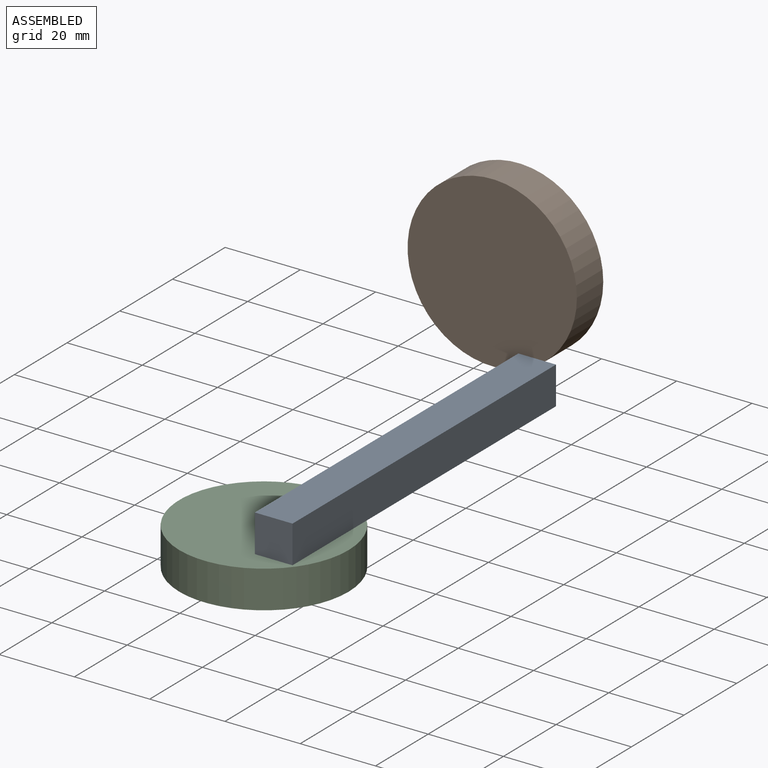
[diagram: assembled view]
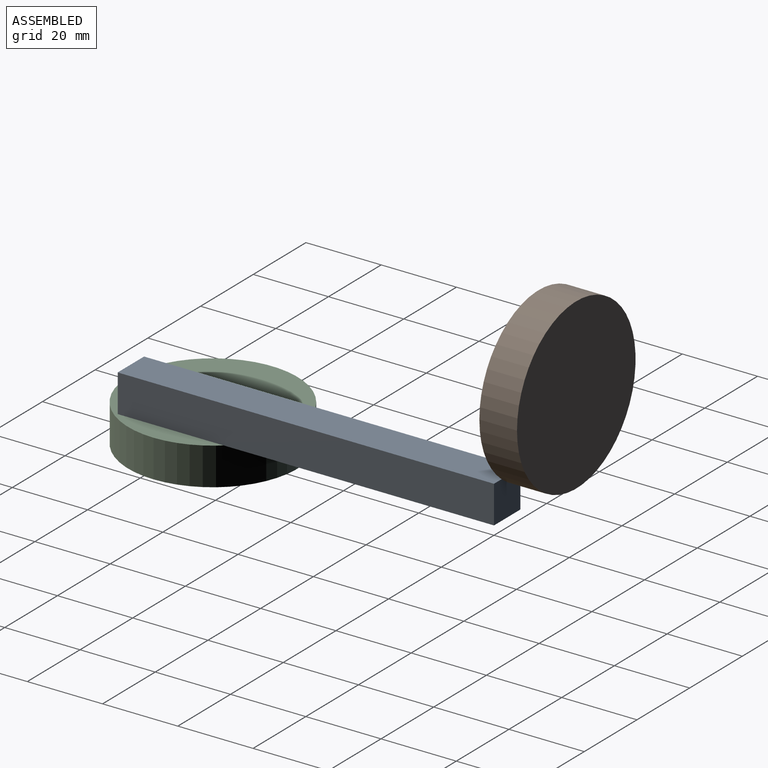
[diagram: assembled view, second angle]
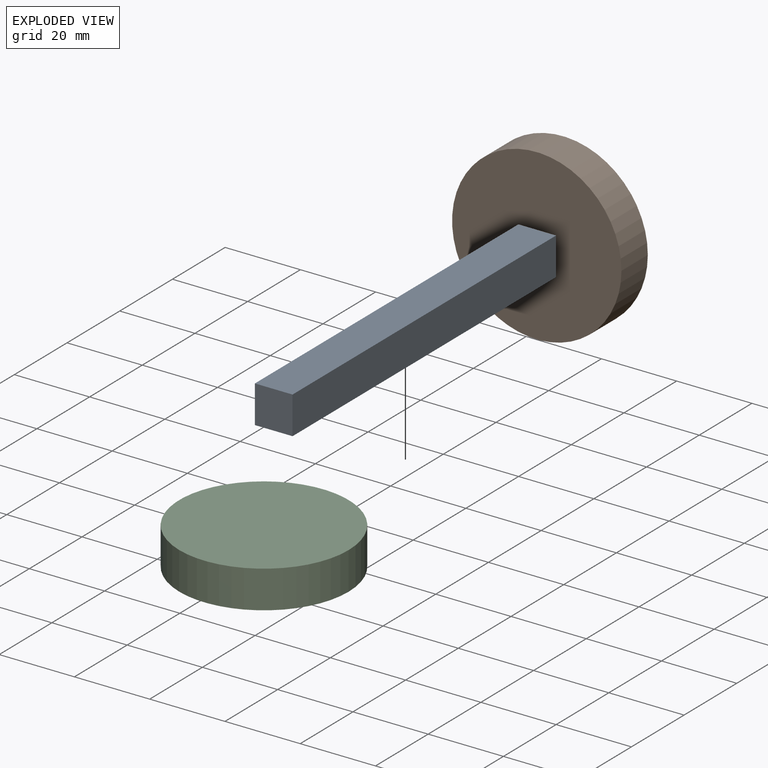
[diagram: exploded view]
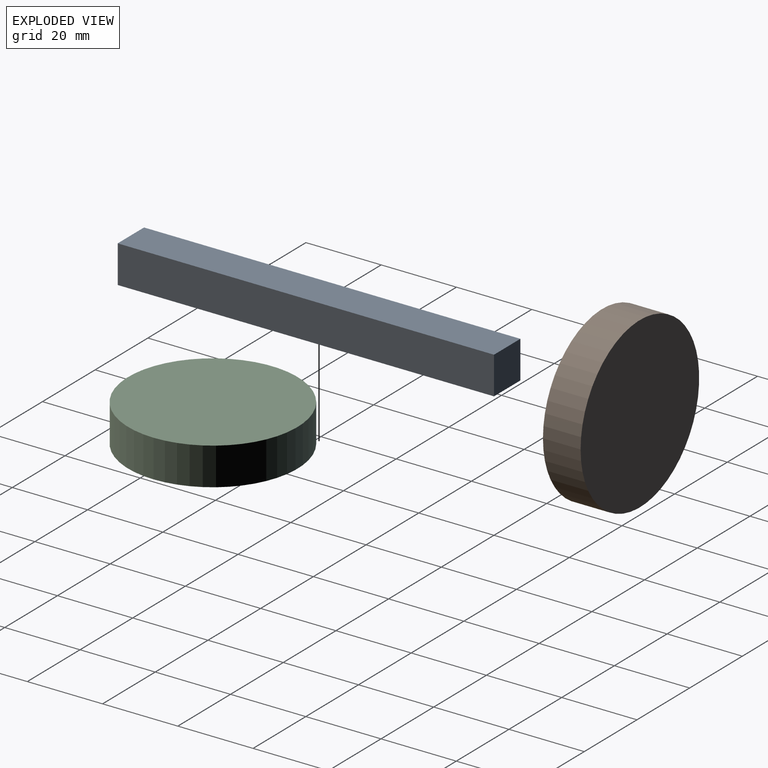
[diagram: exploded view, second angle]
ASSEMBLY  parts=3 mates=2
PART A: 6 faces, bbox 10x10x100 mm
  f0: plane 100x10mm, normal (-1,0,0), area 1000mm2, adj f1,f3,f4,f5
  f1: plane 100x10mm, normal (0,-1,0), area 1000mm2, adj f0,f2,f4,f5
  f2: plane 100x10mm, normal (1,0,0), area 1000mm2, adj f1,f3,f4,f5
  f3: plane 100x10mm, normal (0,1,0), area 1000mm2, adj f0,f2,f4,f5
  f4: plane 10x10mm, normal (0,0,1), area 100mm2, adj f0,f1,f2,f3
  f5: plane 10x10mm, normal (0,0,-1), area 100mm2, adj f0,f1,f2,f3
PART B: 3 faces, bbox 45x45x10 mm
  f0: cylinder r=22.5mm len=45mm, axis (0,0,-1), area 1413.7mm2, adj f1,f2
  f1: plane 45x45mm, normal (0,0,1), area 1590.4mm2, adj f0
  f2: plane 45x45mm, normal (0,0,-1), area 1590.4mm2, adj f0
PART C: same geometry as B
PLACE A rot(axis=(1,0,0),90deg) t=(3.96,60.66,-16.28)mm
PLACE B rot(axis=(1,0,0),90deg) t=(-7.45,70.66,5.64)mm
PLACE C t=(-7.48,-25.94,-31.92)mm
MATE planar A.f1 <-> C.f0  axis (0,0,-1) through (4.49,10.66,-21.92)mm
MATE planar B.f0 <-> A.f5  axis (0,-1,0) through (-7.45,60.66,5.64)mm
